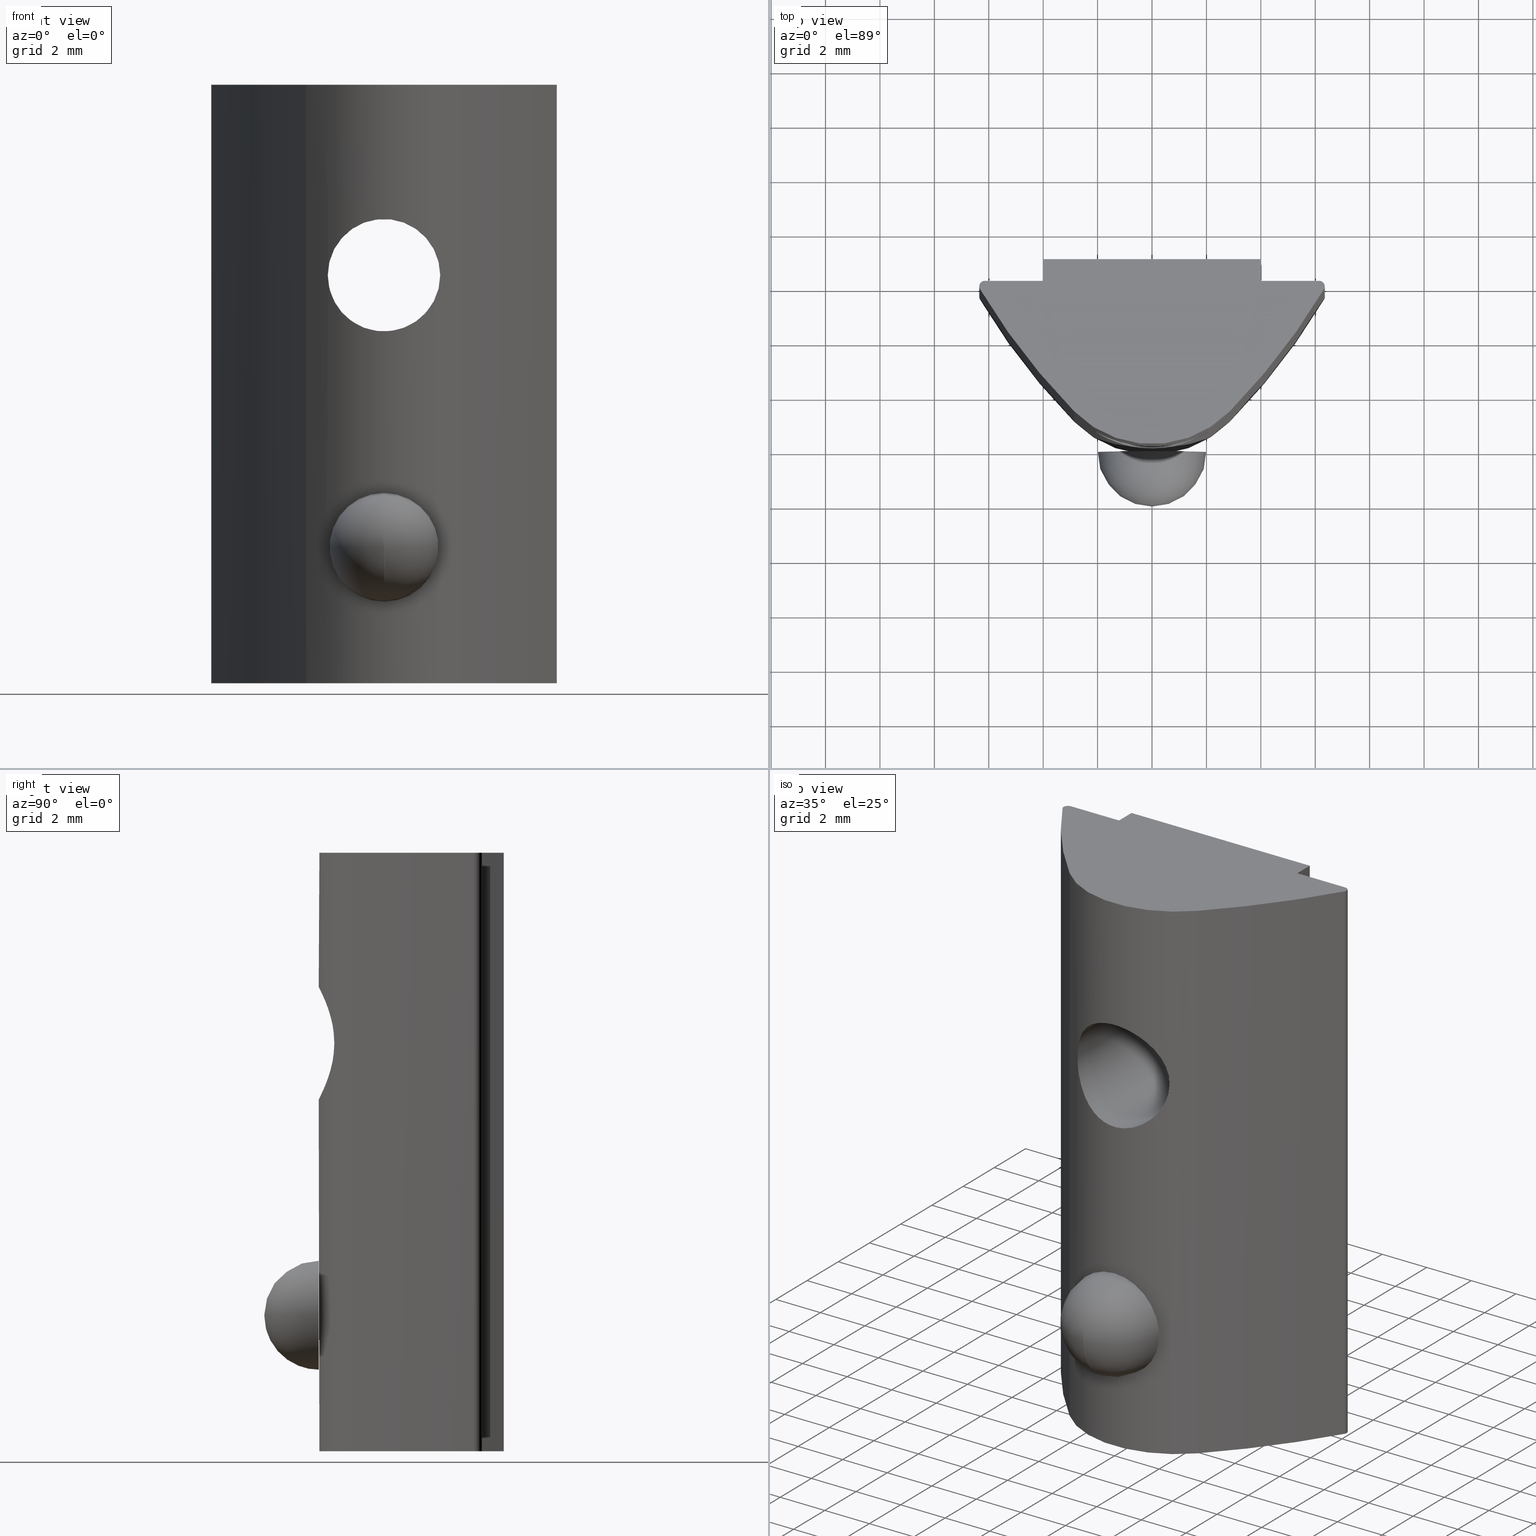
[diagram: canonical four-view strip — front | top / right | iso, engineering-drawing reading convention]
A machine part, canonical four-view strip (front | top / right | iso — engineering-drawing reading convention). The complete STEP part file that produces these views, byte-faithful:
ISO-10303-21;
HEADER;
/* Generated by software containing ST-Developer
 * from STEP Tools, Inc. (www.steptools.com) 
 */

FILE_DESCRIPTION(
/* description */ ('CURSORE ZINC. A CULLA M4 CAVA 8'),
/* implementation_level */ '2;1');

FILE_NAME(
/* name */ 
'Q:\\Catalogo\\2_Accessori Dierre\\Per Download Web e catalogo cartace
o\\CATALOGO ELEMENTI ASSEMBLAGGIO\\PAGINA 7\\CDDCU0000035.stp',
/* time_stamp */ '2018-05-07T09:57:11+02:00',
/* author */ ('fzagni'),
/* organization */ (''),
/* preprocessor_version */ 'ST-DEVELOPER v16.1',
/* originating_system */ 'Autodesk Inventor 2016',
/* authorisation */ '');

FILE_SCHEMA (('AUTOMOTIVE_DESIGN { 1 0 10303 214 3 1 1 }'));
ENDSEC;

DATA;
#10=MECHANICAL_DESIGN_GEOMETRIC_PRESENTATION_REPRESENTATION('',(#13),#498);
#11=SHAPE_REPRESENTATION_RELATIONSHIP('SRR','None',#507,#12);
#12=ADVANCED_BREP_SHAPE_REPRESENTATION('',(#14),#497);
#13=STYLED_ITEM('',(#516),#14);
#14=MANIFOLD_SOLID_BREP('Solido2',#274);
#15=SPHERICAL_SURFACE('',#280,2.);
#16=LINE('',#428,#37);
#17=LINE('',#438,#38);
#18=LINE('',#441,#39);
#19=LINE('',#444,#40);
#20=LINE('',#446,#41);
#21=LINE('',#447,#42);
#22=LINE('',#458,#43);
#23=LINE('',#460,#44);
#24=LINE('',#462,#45);
#25=LINE('',#463,#46);
#26=LINE('',#466,#47);
#27=LINE('',#469,#48);
#28=LINE('',#472,#49);
#29=LINE('',#473,#50);
#30=LINE('',#476,#51);
#31=LINE('',#480,#52);
#32=LINE('',#481,#53);
#33=LINE('',#485,#54);
#34=LINE('',#490,#55);
#35=LINE('',#491,#56);
#36=LINE('',#493,#57);
#37=VECTOR('',#313,4.);
#38=VECTOR('',#326,22.);
#39=VECTOR('',#329,22.);
#40=VECTOR('',#332,2.15065889112079);
#41=VECTOR('',#333,22.);
#42=VECTOR('',#334,2.15065889112079);
#43=VECTOR('',#345,2.15065889112079);
#44=VECTOR('',#346,0.800000000000001);
#45=VECTOR('',#347,8.);
#46=VECTOR('',#348,0.800000000000001);
#47=VECTOR('',#351,22.);
#48=VECTOR('',#354,22.);
#49=VECTOR('',#357,2.15065889112079);
#50=VECTOR('',#358,22.);
#51=VECTOR('',#361,22.);
#52=VECTOR('',#366,0.800000000000001);
#53=VECTOR('',#367,22.);
#54=VECTOR('',#372,22.);
#55=VECTOR('',#379,0.800000000000001);
#56=VECTOR('',#380,22.);
#57=VECTOR('',#383,8.);
#58=PLANE('',#278);
#59=PLANE('',#282);
#60=PLANE('',#286);
#61=PLANE('',#287);
#62=PLANE('',#294);
#63=PLANE('',#297);
#64=PLANE('',#302);
#65=PLANE('',#303);
#66=PLANE('',#304);
#67=FACE_BOUND('',#101,.T.);
#68=FACE_BOUND('',#113,.T.);
#69=FACE_BOUND('',#114,.T.);
#70=FACE_BOUND('',#118,.T.);
#71=CIRCLE('',#277,2.067);
#72=CIRCLE('',#279,2.);
#73=CIRCLE('',#281,2.);
#74=CIRCLE('',#284,0.2);
#75=CIRCLE('',#285,0.2);
#76=CIRCLE('',#288,24.0397940201209);
#77=CIRCLE('',#289,4.);
#78=CIRCLE('',#290,24.0397940201209);
#79=CIRCLE('',#291,0.2);
#80=CIRCLE('',#293,0.2);
#81=CIRCLE('',#296,24.0397940201209);
#82=CIRCLE('',#299,4.);
#83=CIRCLE('',#301,24.0397940201209);
#84=FACE_OUTER_BOUND('',#100,.T.);
#85=FACE_OUTER_BOUND('',#102,.T.);
#86=FACE_OUTER_BOUND('',#103,.T.);
#87=FACE_OUTER_BOUND('',#104,.T.);
#88=FACE_OUTER_BOUND('',#105,.T.);
#89=FACE_OUTER_BOUND('',#106,.T.);
#90=FACE_OUTER_BOUND('',#107,.T.);
#91=FACE_OUTER_BOUND('',#108,.T.);
#92=FACE_OUTER_BOUND('',#109,.T.);
#93=FACE_OUTER_BOUND('',#110,.T.);
#94=FACE_OUTER_BOUND('',#111,.T.);
#95=FACE_OUTER_BOUND('',#112,.T.);
#96=FACE_OUTER_BOUND('',#115,.T.);
#97=FACE_OUTER_BOUND('',#116,.T.);
#98=FACE_OUTER_BOUND('',#117,.T.);
#99=FACE_OUTER_BOUND('',#119,.T.);
#100=EDGE_LOOP('',(#180));
#101=EDGE_LOOP('',(#181));
#102=EDGE_LOOP('',(#182,#183));
#103=EDGE_LOOP('',(#184,#185));
#104=EDGE_LOOP('',(#186,#187));
#105=EDGE_LOOP('',(#188,#189,#190,#191));
#106=EDGE_LOOP('',(#192,#193,#194,#195));
#107=EDGE_LOOP('',(#196,#197,#198,#199,#200,#201,#202,#203,#204,#205));
#108=EDGE_LOOP('',(#206,#207,#208,#209));
#109=EDGE_LOOP('',(#210,#211,#212,#213));
#110=EDGE_LOOP('',(#214,#215,#216,#217));
#111=EDGE_LOOP('',(#218,#219,#220,#221));
#112=EDGE_LOOP('',(#222,#223,#224,#225));
#113=EDGE_LOOP('',(#226));
#114=EDGE_LOOP('',(#227,#228));
#115=EDGE_LOOP('',(#229,#230,#231,#232));
#116=EDGE_LOOP('',(#233,#234,#235,#236));
#117=EDGE_LOOP('',(#237,#238,#239,#240));
#118=EDGE_LOOP('',(#241));
#119=EDGE_LOOP('',(#242,#243,#244,#245,#246,#247,#248,#249,#250,#251));
#120=B_SPLINE_CURVE_WITH_KNOTS('',3,(#389,#390,#391,#392,#393,#394,#395,
#396,#397,#398,#399,#400,#401,#402,#403,#404,#405,#406,#407,#408,#409,#410,
#411,#412,#413,#414,#415,#416,#417,#418,#419,#420,#421,#422),
 .UNSPECIFIED.,.T.,.F.,(4,2,2,2,2,2,2,2,2,2,2,2,2,2,2,2,4),(0.,0.0797064293911206,
0.159412858782241,0.238866490505307,0.318320122228373,0.397773753951439,
0.477227385674505,0.556933815065625,0.636640244456746,0.716346673847867,
0.796053103238987,0.875506734962053,0.954960366685119,1.03441399840818,
1.11386763013125,1.19357405952237,1.27328048891349),.UNSPECIFIED.);
#121=VERTEX_POINT('',#388);
#122=VERTEX_POINT('',#423);
#123=VERTEX_POINT('',#426);
#124=VERTEX_POINT('',#427);
#125=VERTEX_POINT('',#434);
#126=VERTEX_POINT('',#435);
#127=VERTEX_POINT('',#437);
#128=VERTEX_POINT('',#439);
#129=VERTEX_POINT('',#443);
#130=VERTEX_POINT('',#445);
#131=VERTEX_POINT('',#449);
#132=VERTEX_POINT('',#451);
#133=VERTEX_POINT('',#453);
#134=VERTEX_POINT('',#455);
#135=VERTEX_POINT('',#457);
#136=VERTEX_POINT('',#459);
#137=VERTEX_POINT('',#461);
#138=VERTEX_POINT('',#465);
#139=VERTEX_POINT('',#467);
#140=VERTEX_POINT('',#471);
#141=VERTEX_POINT('',#475);
#142=VERTEX_POINT('',#479);
#143=VERTEX_POINT('',#483);
#144=VERTEX_POINT('',#489);
#145=EDGE_CURVE('',#121,#121,#120,.T.);
#146=EDGE_CURVE('',#122,#122,#71,.T.);
#147=EDGE_CURVE('',#123,#124,#16,.T.);
#148=EDGE_CURVE('',#124,#123,#72,.T.);
#149=EDGE_CURVE('',#123,#124,#73,.T.);
#150=EDGE_CURVE('',#125,#126,#74,.T.);
#151=EDGE_CURVE('',#126,#127,#17,.T.);
#152=EDGE_CURVE('',#127,#128,#75,.T.);
#153=EDGE_CURVE('',#128,#125,#18,.T.);
#154=EDGE_CURVE('',#129,#126,#19,.T.);
#155=EDGE_CURVE('',#130,#129,#20,.T.);
#156=EDGE_CURVE('',#130,#127,#21,.T.);
#157=EDGE_CURVE('',#125,#131,#76,.T.);
#158=EDGE_CURVE('',#131,#132,#77,.T.);
#159=EDGE_CURVE('',#133,#132,#78,.T.);
#160=EDGE_CURVE('',#134,#133,#79,.T.);
#161=EDGE_CURVE('',#135,#134,#22,.T.);
#162=EDGE_CURVE('',#136,#135,#23,.T.);
#163=EDGE_CURVE('',#137,#136,#24,.T.);
#164=EDGE_CURVE('',#137,#129,#25,.T.);
#165=EDGE_CURVE('',#133,#138,#26,.T.);
#166=EDGE_CURVE('',#138,#139,#80,.T.);
#167=EDGE_CURVE('',#139,#134,#27,.T.);
#168=EDGE_CURVE('',#140,#139,#28,.T.);
#169=EDGE_CURVE('',#140,#135,#29,.T.);
#170=EDGE_CURVE('',#141,#132,#30,.T.);
#171=EDGE_CURVE('',#138,#141,#81,.T.);
#172=EDGE_CURVE('',#142,#140,#31,.T.);
#173=EDGE_CURVE('',#142,#136,#32,.T.);
#174=EDGE_CURVE('',#143,#141,#82,.T.);
#175=EDGE_CURVE('',#143,#131,#33,.T.);
#176=EDGE_CURVE('',#128,#143,#83,.T.);
#177=EDGE_CURVE('',#144,#130,#34,.T.);
#178=EDGE_CURVE('',#144,#137,#35,.T.);
#179=EDGE_CURVE('',#144,#142,#36,.T.);
#180=ORIENTED_EDGE('',*,*,#145,.F.);
#181=ORIENTED_EDGE('',*,*,#146,.F.);
#182=ORIENTED_EDGE('',*,*,#147,.F.);
#183=ORIENTED_EDGE('',*,*,#148,.F.);
#184=ORIENTED_EDGE('',*,*,#149,.T.);
#185=ORIENTED_EDGE('',*,*,#148,.T.);
#186=ORIENTED_EDGE('',*,*,#147,.T.);
#187=ORIENTED_EDGE('',*,*,#149,.F.);
#188=ORIENTED_EDGE('',*,*,#150,.T.);
#189=ORIENTED_EDGE('',*,*,#151,.T.);
#190=ORIENTED_EDGE('',*,*,#152,.T.);
#191=ORIENTED_EDGE('',*,*,#153,.T.);
#192=ORIENTED_EDGE('',*,*,#151,.F.);
#193=ORIENTED_EDGE('',*,*,#154,.F.);
#194=ORIENTED_EDGE('',*,*,#155,.F.);
#195=ORIENTED_EDGE('',*,*,#156,.T.);
#196=ORIENTED_EDGE('',*,*,#150,.F.);
#197=ORIENTED_EDGE('',*,*,#157,.T.);
#198=ORIENTED_EDGE('',*,*,#158,.T.);
#199=ORIENTED_EDGE('',*,*,#159,.F.);
#200=ORIENTED_EDGE('',*,*,#160,.F.);
#201=ORIENTED_EDGE('',*,*,#161,.F.);
#202=ORIENTED_EDGE('',*,*,#162,.F.);
#203=ORIENTED_EDGE('',*,*,#163,.F.);
#204=ORIENTED_EDGE('',*,*,#164,.T.);
#205=ORIENTED_EDGE('',*,*,#154,.T.);
#206=ORIENTED_EDGE('',*,*,#160,.T.);
#207=ORIENTED_EDGE('',*,*,#165,.T.);
#208=ORIENTED_EDGE('',*,*,#166,.T.);
#209=ORIENTED_EDGE('',*,*,#167,.T.);
#210=ORIENTED_EDGE('',*,*,#167,.F.);
#211=ORIENTED_EDGE('',*,*,#168,.F.);
#212=ORIENTED_EDGE('',*,*,#169,.T.);
#213=ORIENTED_EDGE('',*,*,#161,.T.);
#214=ORIENTED_EDGE('',*,*,#165,.F.);
#215=ORIENTED_EDGE('',*,*,#159,.T.);
#216=ORIENTED_EDGE('',*,*,#170,.F.);
#217=ORIENTED_EDGE('',*,*,#171,.F.);
#218=ORIENTED_EDGE('',*,*,#172,.F.);
#219=ORIENTED_EDGE('',*,*,#173,.T.);
#220=ORIENTED_EDGE('',*,*,#162,.T.);
#221=ORIENTED_EDGE('',*,*,#169,.F.);
#222=ORIENTED_EDGE('',*,*,#174,.T.);
#223=ORIENTED_EDGE('',*,*,#170,.T.);
#224=ORIENTED_EDGE('',*,*,#158,.F.);
#225=ORIENTED_EDGE('',*,*,#175,.F.);
#226=ORIENTED_EDGE('',*,*,#145,.T.);
#227=ORIENTED_EDGE('',*,*,#147,.T.);
#228=ORIENTED_EDGE('',*,*,#147,.F.);
#229=ORIENTED_EDGE('',*,*,#153,.F.);
#230=ORIENTED_EDGE('',*,*,#176,.T.);
#231=ORIENTED_EDGE('',*,*,#175,.T.);
#232=ORIENTED_EDGE('',*,*,#157,.F.);
#233=ORIENTED_EDGE('',*,*,#177,.T.);
#234=ORIENTED_EDGE('',*,*,#155,.T.);
#235=ORIENTED_EDGE('',*,*,#164,.F.);
#236=ORIENTED_EDGE('',*,*,#178,.F.);
#237=ORIENTED_EDGE('',*,*,#179,.F.);
#238=ORIENTED_EDGE('',*,*,#178,.T.);
#239=ORIENTED_EDGE('',*,*,#163,.T.);
#240=ORIENTED_EDGE('',*,*,#173,.F.);
#241=ORIENTED_EDGE('',*,*,#146,.T.);
#242=ORIENTED_EDGE('',*,*,#152,.F.);
#243=ORIENTED_EDGE('',*,*,#156,.F.);
#244=ORIENTED_EDGE('',*,*,#177,.F.);
#245=ORIENTED_EDGE('',*,*,#179,.T.);
#246=ORIENTED_EDGE('',*,*,#172,.T.);
#247=ORIENTED_EDGE('',*,*,#168,.T.);
#248=ORIENTED_EDGE('',*,*,#166,.F.);
#249=ORIENTED_EDGE('',*,*,#171,.T.);
#250=ORIENTED_EDGE('',*,*,#174,.F.);
#251=ORIENTED_EDGE('',*,*,#176,.F.);
#252=CYLINDRICAL_SURFACE('',#276,2.067);
#253=CYLINDRICAL_SURFACE('',#283,0.2);
#254=CYLINDRICAL_SURFACE('',#292,0.2);
#255=CYLINDRICAL_SURFACE('',#295,24.0397940201209);
#256=CYLINDRICAL_SURFACE('',#298,4.);
#257=CYLINDRICAL_SURFACE('',#300,24.0397940201209);
#258=ADVANCED_FACE('',(#84,#67),#252,.F.);
#259=ADVANCED_FACE('',(#85),#58,.T.);
#260=ADVANCED_FACE('',(#86),#15,.T.);
#261=ADVANCED_FACE('',(#87),#59,.T.);
#262=ADVANCED_FACE('',(#88),#253,.T.);
#263=ADVANCED_FACE('',(#89),#60,.T.);
#264=ADVANCED_FACE('',(#90),#61,.T.);
#265=ADVANCED_FACE('',(#91),#254,.T.);
#266=ADVANCED_FACE('',(#92),#62,.F.);
#267=ADVANCED_FACE('',(#93),#255,.T.);
#268=ADVANCED_FACE('',(#94),#63,.F.);
#269=ADVANCED_FACE('',(#95,#68,#69),#256,.T.);
#270=ADVANCED_FACE('',(#96),#257,.T.);
#271=ADVANCED_FACE('',(#97),#64,.T.);
#272=ADVANCED_FACE('',(#98,#70),#65,.T.);
#273=ADVANCED_FACE('',(#99),#66,.F.);
#274=CLOSED_SHELL('',(#258,#259,#260,#261,#262,#263,#264,#265,#266,#267,
#268,#269,#270,#271,#272,#273));
#275=AXIS2_PLACEMENT_3D('placement',#386,#305,#306);
#276=AXIS2_PLACEMENT_3D('',#387,#307,#308);
#277=AXIS2_PLACEMENT_3D('',#424,#309,#310);
#278=AXIS2_PLACEMENT_3D('',#425,#311,#312);
#279=AXIS2_PLACEMENT_3D('',#429,#314,#315);
#280=AXIS2_PLACEMENT_3D('',#430,#316,#317);
#281=AXIS2_PLACEMENT_3D('',#431,#318,#319);
#282=AXIS2_PLACEMENT_3D('',#432,#320,#321);
#283=AXIS2_PLACEMENT_3D('',#433,#322,#323);
#284=AXIS2_PLACEMENT_3D('',#436,#324,#325);
#285=AXIS2_PLACEMENT_3D('',#440,#327,#328);
#286=AXIS2_PLACEMENT_3D('',#442,#330,#331);
#287=AXIS2_PLACEMENT_3D('',#448,#335,#336);
#288=AXIS2_PLACEMENT_3D('',#450,#337,#338);
#289=AXIS2_PLACEMENT_3D('',#452,#339,#340);
#290=AXIS2_PLACEMENT_3D('',#454,#341,#342);
#291=AXIS2_PLACEMENT_3D('',#456,#343,#344);
#292=AXIS2_PLACEMENT_3D('',#464,#349,#350);
#293=AXIS2_PLACEMENT_3D('',#468,#352,#353);
#294=AXIS2_PLACEMENT_3D('',#470,#355,#356);
#295=AXIS2_PLACEMENT_3D('',#474,#359,#360);
#296=AXIS2_PLACEMENT_3D('',#477,#362,#363);
#297=AXIS2_PLACEMENT_3D('',#478,#364,#365);
#298=AXIS2_PLACEMENT_3D('',#482,#368,#369);
#299=AXIS2_PLACEMENT_3D('',#484,#370,#371);
#300=AXIS2_PLACEMENT_3D('',#486,#373,#374);
#301=AXIS2_PLACEMENT_3D('',#487,#375,#376);
#302=AXIS2_PLACEMENT_3D('',#488,#377,#378);
#303=AXIS2_PLACEMENT_3D('',#492,#381,#382);
#304=AXIS2_PLACEMENT_3D('',#494,#384,#385);
#305=DIRECTION('axis',(0.,0.,1.));
#306=DIRECTION('refdir',(1.,0.,0.));
#307=DIRECTION('center_axis',(0.,1.,0.));
#308=DIRECTION('ref_axis',(1.,0.,0.));
#309=DIRECTION('center_axis',(0.,-1.,0.));
#310=DIRECTION('ref_axis',(1.,0.,0.));
#311=DIRECTION('center_axis',(-3.70074341541719E-16,1.,0.));
#312=DIRECTION('ref_axis',(0.,0.,1.));
#313=DIRECTION('',(0.,0.,1.));
#314=DIRECTION('center_axis',(4.44089209850062E-16,-1.,0.));
#315=DIRECTION('ref_axis',(-1.,-4.44089209850062E-16,0.));
#316=DIRECTION('center_axis',(0.,1.,0.));
#317=DIRECTION('ref_axis',(0.,0.,-1.));
#318=DIRECTION('center_axis',(4.44089209850062E-16,-1.,0.));
#319=DIRECTION('ref_axis',(-1.,-4.44089209850062E-16,0.));
#320=DIRECTION('center_axis',(-3.70074341541719E-16,1.,0.));
#321=DIRECTION('ref_axis',(0.,0.,1.));
#322=DIRECTION('center_axis',(0.,0.,1.));
#323=DIRECTION('ref_axis',(-0.869650504899644,0.493667903886605,0.));
#324=DIRECTION('center_axis',(0.,0.,-1.));
#325=DIRECTION('ref_axis',(-0.869650504899644,0.493667903886605,0.));
#326=DIRECTION('',(0.,0.,-1.));
#327=DIRECTION('center_axis',(0.,0.,1.));
#328=DIRECTION('ref_axis',(-0.869650504899644,0.493667903886605,0.));
#329=DIRECTION('',(0.,0.,1.));
#330=DIRECTION('center_axis',(-4.44089209850062E-16,1.,0.));
#331=DIRECTION('ref_axis',(-1.,-4.44089209850063E-16,0.));
#332=DIRECTION('',(-1.,-4.44089209850062E-16,0.));
#333=DIRECTION('',(0.,0.,1.));
#334=DIRECTION('',(-1.,-4.44089209850062E-16,0.));
#335=DIRECTION('center_axis',(0.,0.,1.));
#336=DIRECTION('ref_axis',(1.,0.,0.));
#337=DIRECTION('center_axis',(0.,0.,1.));
#338=DIRECTION('ref_axis',(-0.866025403784438,-0.500000000000001,0.));
#339=DIRECTION('center_axis',(0.,0.,1.));
#340=DIRECTION('ref_axis',(-0.714531911295739,-0.69960285000853,0.));
#341=DIRECTION('center_axis',(0.,0.,-1.));
#342=DIRECTION('ref_axis',(0.866025403784438,-0.500000000000001,0.));
#343=DIRECTION('center_axis',(0.,0.,-1.));
#344=DIRECTION('ref_axis',(0.869650504899644,0.493667903886605,0.));
#345=DIRECTION('',(1.,-4.44089209850062E-16,0.));
#346=DIRECTION('',(-6.93889390390722E-16,-1.,0.));
#347=DIRECTION('',(1.,7.25055979063407E-34,0.));
#348=DIRECTION('',(6.93889390390722E-16,-1.,0.));
#349=DIRECTION('center_axis',(0.,0.,1.));
#350=DIRECTION('ref_axis',(0.869650504899644,0.493667903886605,0.));
#351=DIRECTION('',(0.,0.,-1.));
#352=DIRECTION('center_axis',(0.,0.,1.));
#353=DIRECTION('ref_axis',(0.869650504899644,0.493667903886605,0.));
#354=DIRECTION('',(0.,0.,1.));
#355=DIRECTION('center_axis',(-4.44089209850062E-16,-1.,0.));
#356=DIRECTION('ref_axis',(1.,-4.44089209850063E-16,0.));
#357=DIRECTION('',(1.,-4.44089209850062E-16,0.));
#358=DIRECTION('',(0.,0.,1.));
#359=DIRECTION('center_axis',(0.,0.,-1.));
#360=DIRECTION('ref_axis',(0.866025403784438,-0.500000000000001,0.));
#361=DIRECTION('',(0.,0.,1.));
#362=DIRECTION('center_axis',(0.,0.,-1.));
#363=DIRECTION('ref_axis',(0.866025403784438,-0.500000000000001,0.));
#364=DIRECTION('center_axis',(-1.,6.93889390390722E-16,0.));
#365=DIRECTION('ref_axis',(-7.105427357601E-16,-1.,0.));
#366=DIRECTION('',(-6.93889390390722E-16,-1.,0.));
#367=DIRECTION('',(0.,0.,1.));
#368=DIRECTION('center_axis',(0.,0.,1.));
#369=DIRECTION('ref_axis',(-0.714531911295739,-0.69960285000853,0.));
#370=DIRECTION('center_axis',(0.,0.,1.));
#371=DIRECTION('ref_axis',(-0.714531911295739,-0.69960285000853,0.));
#372=DIRECTION('',(0.,0.,1.));
#373=DIRECTION('center_axis',(0.,0.,1.));
#374=DIRECTION('ref_axis',(-0.866025403784438,-0.500000000000001,0.));
#375=DIRECTION('center_axis',(0.,0.,1.));
#376=DIRECTION('ref_axis',(-0.866025403784438,-0.500000000000001,0.));
#377=DIRECTION('center_axis',(-1.,-6.93889390390722E-16,0.));
#378=DIRECTION('ref_axis',(7.105427357601E-16,-1.,0.));
#379=DIRECTION('',(6.93889390390722E-16,-1.,0.));
#380=DIRECTION('',(0.,0.,1.));
#381=DIRECTION('center_axis',(0.,1.,0.));
#382=DIRECTION('ref_axis',(-1.,0.,0.));
#383=DIRECTION('',(1.,7.25055979063407E-34,0.));
#384=DIRECTION('center_axis',(0.,0.,1.));
#385=DIRECTION('ref_axis',(1.,0.,0.));
#386=CARTESIAN_POINT('',(0.,0.,0.));
#387=CARTESIAN_POINT('Origin',(0.,-20.0842607003705,15.));
#388=CARTESIAN_POINT('',(-2.067,0.57545462871347,15.));
#389=CARTESIAN_POINT('Ctrl Pts',(-2.067,0.57545462871347,15.));
#390=CARTESIAN_POINT('Ctrl Pts',(-2.067,0.57545462871347,15.2656880979704));
#391=CARTESIAN_POINT('Ctrl Pts',(-2.01285292870242,0.541243036128579,15.5444925823021));
#392=CARTESIAN_POINT('Ctrl Pts',(-1.80059007720931,0.426143478067878,16.0516303580367));
#393=CARTESIAN_POINT('Ctrl Pts',(-1.6426154579373,0.347653589298708,16.2805639754879));
#394=CARTESIAN_POINT('Ctrl Pts',(-1.28113811844711,0.205758910039444,16.6420413149781));
#395=CARTESIAN_POINT('Ctrl Pts',(-1.05201595879367,0.132126138343621,16.8004341776699));
#396=CARTESIAN_POINT('Ctrl Pts',(-0.544033155353859,0.0287012506451315,
17.0130397274761));
#397=CARTESIAN_POINT('Ctrl Pts',(-0.264845439076887,2.51405685171475E-17,
17.067));
#398=CARTESIAN_POINT('Ctrl Pts',(0.264845439076886,-2.51405685171474E-17,
17.067));
#399=CARTESIAN_POINT('Ctrl Pts',(0.544033155353857,0.0287012506451316,17.0130397274761));
#400=CARTESIAN_POINT('Ctrl Pts',(1.05201595879367,0.132126138343621,16.8004341776699));
#401=CARTESIAN_POINT('Ctrl Pts',(1.28113811844711,0.205758910039443,16.6420413149781));
#402=CARTESIAN_POINT('Ctrl Pts',(1.6426154579373,0.347653589298708,16.2805639754879));
#403=CARTESIAN_POINT('Ctrl Pts',(1.80059007720931,0.426143478067878,16.0516303580367));
#404=CARTESIAN_POINT('Ctrl Pts',(2.01285292870242,0.541243036128579,15.5444925823021));
#405=CARTESIAN_POINT('Ctrl Pts',(2.067,0.57545462871347,15.2656880979704));
#406=CARTESIAN_POINT('Ctrl Pts',(2.067,0.57545462871347,14.7343119020296));
#407=CARTESIAN_POINT('Ctrl Pts',(2.01285292870242,0.541243036128579,14.4555074176979));
#408=CARTESIAN_POINT('Ctrl Pts',(1.80059007720931,0.426143478067879,13.9483696419634));
#409=CARTESIAN_POINT('Ctrl Pts',(1.6426154579373,0.347653589298708,13.7194360245121));
#410=CARTESIAN_POINT('Ctrl Pts',(1.28113811844711,0.205758910039444,13.3579586850219));
#411=CARTESIAN_POINT('Ctrl Pts',(1.05201595879367,0.132126138343622,13.1995658223301));
#412=CARTESIAN_POINT('Ctrl Pts',(0.544033155353859,0.0287012506451318,12.9869602725239));
#413=CARTESIAN_POINT('Ctrl Pts',(0.264845439076887,4.19009475285791E-17,
12.933));
#414=CARTESIAN_POINT('Ctrl Pts',(-0.264845439076886,-4.19009475285791E-17,
12.933));
#415=CARTESIAN_POINT('Ctrl Pts',(-0.544033155353857,0.0287012506451314,
12.9869602725239));
#416=CARTESIAN_POINT('Ctrl Pts',(-1.05201595879367,0.132126138343621,13.1995658223301));
#417=CARTESIAN_POINT('Ctrl Pts',(-1.28113811844711,0.205758910039443,13.3579586850219));
#418=CARTESIAN_POINT('Ctrl Pts',(-1.6426154579373,0.347653589298708,13.7194360245121));
#419=CARTESIAN_POINT('Ctrl Pts',(-1.80059007720931,0.426143478067878,13.9483696419634));
#420=CARTESIAN_POINT('Ctrl Pts',(-2.01285292870242,0.541243036128579,14.4555074176979));
#421=CARTESIAN_POINT('Ctrl Pts',(-2.067,0.57545462871347,14.7343119020296));
#422=CARTESIAN_POINT('Ctrl Pts',(-2.067,0.57545462871347,15.));
#423=CARTESIAN_POINT('',(2.067,6.8,15.));
#424=CARTESIAN_POINT('Origin',(0.,6.8,15.));
#425=CARTESIAN_POINT('Origin',(4.64801130720914E-17,6.66133814775091E-16,
4.31131980141698));
#426=CARTESIAN_POINT('',(1.77635683940025E-15,6.66133814775091E-16,3.));
#427=CARTESIAN_POINT('',(1.77635683940025E-15,6.66133814775091E-16,7.));
#428=CARTESIAN_POINT('',(1.48029736616688E-15,5.55111512312578E-16,0.));
#429=CARTESIAN_POINT('Origin',(0.,6.66133814775091E-16,5.));
#430=CARTESIAN_POINT('Origin',(0.,6.66133814775091E-16,5.));
#431=CARTESIAN_POINT('Origin',(0.,6.66133814775091E-16,5.));
#432=CARTESIAN_POINT('Origin',(4.64801130720914E-17,6.66133814775091E-16,
4.31131980141698));
#433=CARTESIAN_POINT('Origin',(-6.15065889112079,5.8,0.));
#434=CARTESIAN_POINT('',(-6.32238630786788,5.69748319973111,22.));
#435=CARTESIAN_POINT('',(-6.15065889112079,6.,22.));
#436=CARTESIAN_POINT('Origin',(-6.15065889112079,5.8,22.));
#437=CARTESIAN_POINT('',(-6.15065889112079,6.,0.));
#438=CARTESIAN_POINT('',(-6.15065889112079,6.,0.));
#439=CARTESIAN_POINT('',(-6.32238630786788,5.69748319973111,0.));
#440=CARTESIAN_POINT('Origin',(-6.15065889112079,5.8,0.));
#441=CARTESIAN_POINT('',(-6.32238630786788,5.69748319973111,0.));
#442=CARTESIAN_POINT('Origin',(-4.,6.,0.));
#443=CARTESIAN_POINT('',(-4.,6.,22.));
#444=CARTESIAN_POINT('',(-4.,6.,22.));
#445=CARTESIAN_POINT('',(-4.,6.,0.));
#446=CARTESIAN_POINT('',(-4.,6.,0.));
#447=CARTESIAN_POINT('',(-4.,6.,0.));
#448=CARTESIAN_POINT('Origin',(-2.3590021195978,4.15755758650496,22.));
#449=CARTESIAN_POINT('',(-2.85812764518296,1.20158859996588,22.));
#450=CARTESIAN_POINT('Origin',(14.3190723231699,18.0198970100604,22.));
#451=CARTESIAN_POINT('',(2.85812764518296,1.20158859996588,22.));
#452=CARTESIAN_POINT('Origin',(0.,4.,22.));
#453=CARTESIAN_POINT('',(6.32238630786788,5.69748319973111,22.));
#454=CARTESIAN_POINT('Origin',(-14.3190723231699,18.0198970100604,22.));
#455=CARTESIAN_POINT('',(6.15065889112079,6.,22.));
#456=CARTESIAN_POINT('Origin',(6.15065889112079,5.8,22.));
#457=CARTESIAN_POINT('',(4.,6.,22.));
#458=CARTESIAN_POINT('',(4.,6.,22.));
#459=CARTESIAN_POINT('',(4.,6.8,22.));
#460=CARTESIAN_POINT('',(4.,6.8,22.));
#461=CARTESIAN_POINT('',(-4.,6.8,22.));
#462=CARTESIAN_POINT('',(-2.46519032881558E-33,6.8,22.));
#463=CARTESIAN_POINT('',(-4.,6.8,22.));
#464=CARTESIAN_POINT('Origin',(6.15065889112079,5.8,0.));
#465=CARTESIAN_POINT('',(6.32238630786788,5.69748319973111,0.));
#466=CARTESIAN_POINT('',(6.32238630786788,5.69748319973111,0.));
#467=CARTESIAN_POINT('',(6.15065889112079,6.,0.));
#468=CARTESIAN_POINT('Origin',(6.15065889112079,5.8,0.));
#469=CARTESIAN_POINT('',(6.15065889112079,6.,0.));
#470=CARTESIAN_POINT('Origin',(4.,6.,0.));
#471=CARTESIAN_POINT('',(4.,6.,0.));
#472=CARTESIAN_POINT('',(4.,6.,0.));
#473=CARTESIAN_POINT('',(4.,6.,0.));
#474=CARTESIAN_POINT('Origin',(-14.3190723231699,18.0198970100604,0.));
#475=CARTESIAN_POINT('',(2.85812764518296,1.20158859996588,0.));
#476=CARTESIAN_POINT('',(2.85812764518296,1.20158859996588,0.));
#477=CARTESIAN_POINT('Origin',(-14.3190723231699,18.0198970100604,0.));
#478=CARTESIAN_POINT('Origin',(4.,6.8,0.));
#479=CARTESIAN_POINT('',(4.,6.8,0.));
#480=CARTESIAN_POINT('',(4.,6.8,0.));
#481=CARTESIAN_POINT('',(4.,6.8,0.));
#482=CARTESIAN_POINT('Origin',(0.,4.,0.));
#483=CARTESIAN_POINT('',(-2.85812764518296,1.20158859996588,0.));
#484=CARTESIAN_POINT('Origin',(0.,4.,0.));
#485=CARTESIAN_POINT('',(-2.85812764518296,1.20158859996588,0.));
#486=CARTESIAN_POINT('Origin',(14.3190723231699,18.0198970100604,0.));
#487=CARTESIAN_POINT('Origin',(14.3190723231699,18.0198970100604,0.));
#488=CARTESIAN_POINT('Origin',(-4.,6.8,0.));
#489=CARTESIAN_POINT('',(-4.,6.8,0.));
#490=CARTESIAN_POINT('',(-4.,6.8,0.));
#491=CARTESIAN_POINT('',(-4.,6.8,0.));
#492=CARTESIAN_POINT('Origin',(-2.46519032881558E-33,6.8,0.));
#493=CARTESIAN_POINT('',(-2.46519032881558E-33,6.8,0.));
#494=CARTESIAN_POINT('Origin',(-2.3590021195978,4.15755758650496,0.));
#495=UNCERTAINTY_MEASURE_WITH_UNIT(LENGTH_MEASURE(0.01),#499,
'DISTANCE_ACCURACY_VALUE',
'Maximum model space distance between geometric entities at asserted c
onnectivities');
#496=UNCERTAINTY_MEASURE_WITH_UNIT(LENGTH_MEASURE(1.E-6),#499,
'DISTANCE_ACCURACY_VALUE',
'Maximum model space distance between geometric entities at asserted c
onnectivities');
#497=(
GEOMETRIC_REPRESENTATION_CONTEXT(3)
GLOBAL_UNCERTAINTY_ASSIGNED_CONTEXT((#495))
GLOBAL_UNIT_ASSIGNED_CONTEXT((#499,#502,#500))
REPRESENTATION_CONTEXT('','3D')
);
#498=(
GEOMETRIC_REPRESENTATION_CONTEXT(3)
GLOBAL_UNCERTAINTY_ASSIGNED_CONTEXT((#496))
GLOBAL_UNIT_ASSIGNED_CONTEXT((#499,#502,#500))
REPRESENTATION_CONTEXT('','3D')
);
#499=(
LENGTH_UNIT()
NAMED_UNIT(*)
SI_UNIT(.MILLI.,.METRE.)
);
#500=(
NAMED_UNIT(*)
SI_UNIT($,.STERADIAN.)
SOLID_ANGLE_UNIT()
);
#501=DIMENSIONAL_EXPONENTS(0.,0.,0.,0.,0.,0.,0.);
#502=(
CONVERSION_BASED_UNIT('degree',#504)
NAMED_UNIT(#501)
PLANE_ANGLE_UNIT()
);
#503=(
NAMED_UNIT(*)
PLANE_ANGLE_UNIT()
SI_UNIT($,.RADIAN.)
);
#504=PLANE_ANGLE_MEASURE_WITH_UNIT(PLANE_ANGLE_MEASURE(0.01745329252),#503);
#505=SHAPE_DEFINITION_REPRESENTATION(#506,#507);
#506=PRODUCT_DEFINITION_SHAPE('',$,#509);
#507=SHAPE_REPRESENTATION('',(#275),#497);
#508=PRODUCT_DEFINITION_CONTEXT('part definition',#513,'design');
#509=PRODUCT_DEFINITION('CDDCU0000035','CDDCU0000035',#510,#508);
#510=PRODUCT_DEFINITION_FORMATION('','A',#515);
#511=PRODUCT_RELATED_PRODUCT_CATEGORY('CDDCU0000035','CDDCU0000035',(#515));
#512=APPLICATION_PROTOCOL_DEFINITION('international standard',
'automotive_design',2009,#513);
#513=APPLICATION_CONTEXT(
'Core Data for Automotive Mechanical Design Process');
#514=PRODUCT_CONTEXT('part definition',#513,'mechanical');
#515=PRODUCT('CDDCU0000035','CDDCU0000035',$,(#514));
#516=PRESENTATION_STYLE_ASSIGNMENT((#517));
#517=SURFACE_STYLE_USAGE(.BOTH.,#518);
#518=SURFACE_SIDE_STYLE('',(#519));
#519=SURFACE_STYLE_FILL_AREA(#520);
#520=FILL_AREA_STYLE('',(#521));
#521=FILL_AREA_STYLE_COLOUR('',#522);
#522=COLOUR_RGB('',0.63921568627451,0.63921568627451,0.686274509803922);
ENDSEC;
END-ISO-10303-21;
